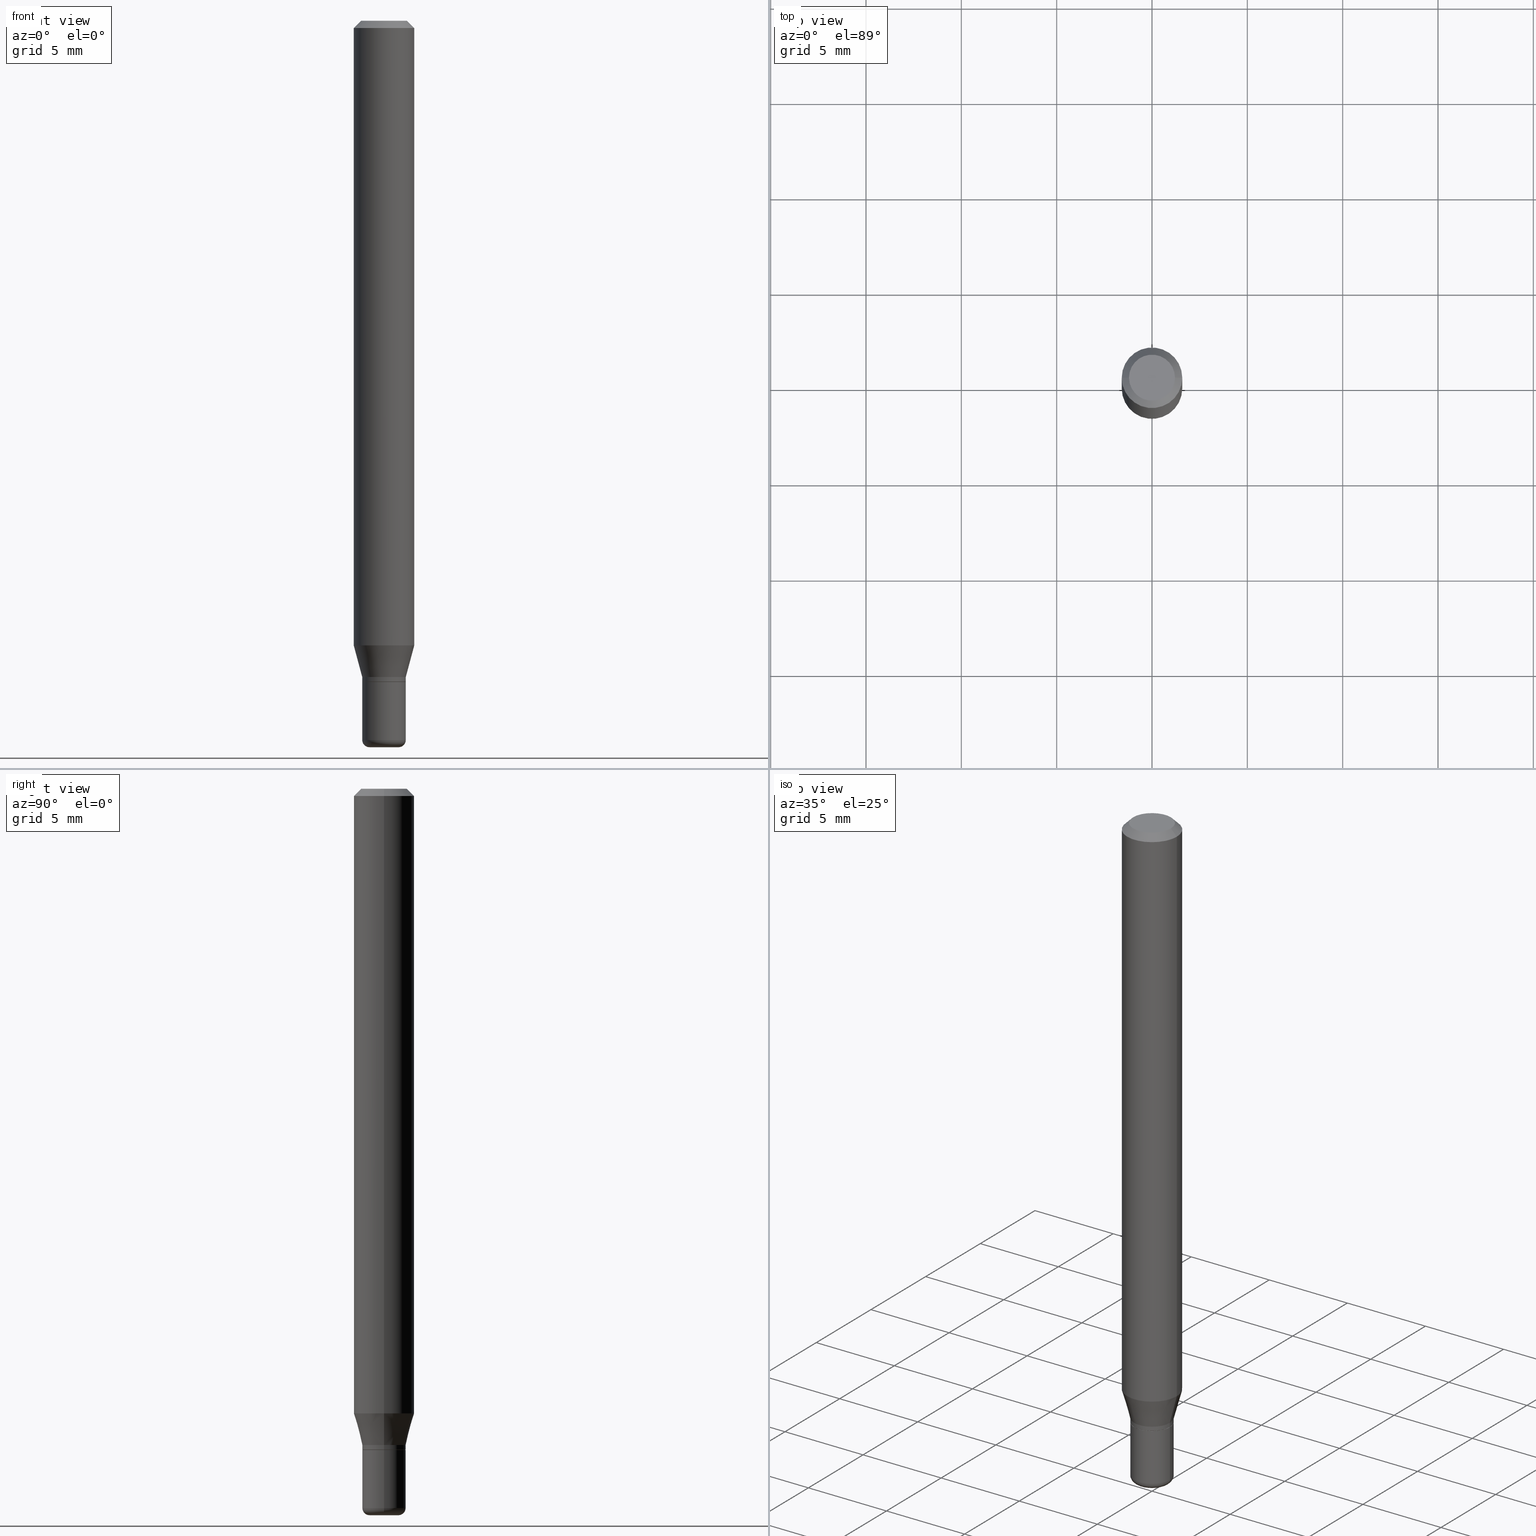
[diagram: canonical four-view strip — front | top / right | iso, engineering-drawing reading convention]
A machine part, canonical four-view strip (front | top / right | iso — engineering-drawing reading convention). The complete STEP part file that produces these views, byte-faithful:
ISO-10303-21;
HEADER;
FILE_DESCRIPTION (( 'STEP AP203' ),
    '1' );
FILE_NAME ('09204.STEP',
    '2024-02-29T23:22:19',
    ( '' ),
    ( '' ),
    'SwSTEP 2.0',
    'SolidWorks 2023',
    '' );
FILE_SCHEMA (( 'CONFIG_CONTROL_DESIGN' ));
ENDSEC;

DATA;
#1 = DIRECTION ( 'NONE',  ( 1.000000000000000000, -6.982962677686270655E-15, 0.000000000000000000 ) ) ;
#2 = CIRCLE ( 'NONE', #397, 0.06250000000000000000 ) ;
#3 = AXIS2_PLACEMENT_3D ( 'NONE', #500, #295, #470 ) ;
#4 = CYLINDRICAL_SURFACE ( 'NONE', #346, 0.04499999999999999833 ) ;
#5 =( NAMED_UNIT ( * ) SI_UNIT ( $, .STERADIAN. ) SOLID_ANGLE_UNIT ( ) );
#6 = CARTESIAN_POINT ( 'NONE',  ( 3.313610232380860851E-29, -4.730957214132463209E-15, -1.355000000000000204 ) ) ;
#7 = ORIENTED_EDGE ( 'NONE', *, *, #257, .T. ) ;
#8 = EDGE_CURVE ( 'NONE', #54, #101, #311, .T. ) ;
#9 = ORIENTED_EDGE ( 'NONE', *, *, #416, .T. ) ;
#10 = DATE_AND_TIME ( #27, #38 ) ;
#11 = ORIENTED_EDGE ( 'NONE', *, *, #42, .T. ) ;
#12 = ORIENTED_EDGE ( 'NONE', *, *, #188, .F. ) ;
#13 = SHAPE_DEFINITION_REPRESENTATION ( #86, #68 ) ;
#14 = ORIENTED_EDGE ( 'NONE', *, *, #451, .F. ) ;
#15 = EDGE_LOOP ( 'NONE', ( #169, #11, #209, #354 ) ) ;
#16 = FACE_OUTER_BOUND ( 'NONE', #216, .T. ) ;
#17 = AXIS2_PLACEMENT_3D ( 'NONE', #468, #247, #110 ) ;
#18 = AXIS2_PLACEMENT_3D ( 'NONE', #40, #479, #306 ) ;
#19 = CARTESIAN_POINT ( 'NONE',  ( 0.000000000000000000, 0.000000000000000000, 0.000000000000000000 ) ) ;
#20 = COORDINATED_UNIVERSAL_TIME_OFFSET ( 5, 0, .BEHIND. ) ;
#21 = ORIENTED_EDGE ( 'NONE', *, *, #200, .T. ) ;
#22 = MECHANICAL_CONTEXT ( 'NONE', #433, 'mechanical' ) ;
#23 = CARTESIAN_POINT ( 'NONE',  ( 0.000000000000000000, 0.000000000000000000, 0.000000000000000000 ) ) ;
#24 = DESIGN_CONTEXT ( 'detailed design', #403, 'design' ) ;
#25 = EDGE_CURVE ( 'NONE', #145, #322, #96, .T. ) ;
#26 = ORIENTED_EDGE ( 'NONE', *, *, #451, .T. ) ;
#27 = CALENDAR_DATE ( 2024, 29, 2 ) ;
#28 = VERTEX_POINT ( 'NONE', #413 ) ;
#29 = VECTOR ( 'NONE', #478, 39.37007874015748143 ) ;
#30 = DIRECTION ( 'NONE',  ( 1.000000000000000000, -6.982962677686266711E-15, 4.876176775795935793E-29 ) ) ;
#31 = VECTOR ( 'NONE', #328, 39.37007874015748143 ) ;
#32 = DIRECTION ( 'NONE',  ( 0.7071067811865479058, -7.319954787623257623E-15, -0.7071067811865471286 ) ) ;
#33 = EDGE_CURVE ( 'NONE', #491, #244, #81, .T. ) ;
#34 = CARTESIAN_POINT ( 'NONE',  ( 3.142333204959153116E-16, 0.04499999999999523131, -1.365000000000000435 ) ) ;
#35 = CC_DESIGN_PERSON_AND_ORGANIZATION_ASSIGNMENT ( #324, #467, ( #396 ) ) ;
#36 = LINE ( 'NONE', #388, #399 ) ;
#37 = VECTOR ( 'NONE', #498, 39.37007874015748143 ) ;
#38 = LOCAL_TIME ( 18, 22, 19.00000000000000000, #217 ) ;
#39 = CARTESIAN_POINT ( 'NONE',  ( 0.06250000000000000000, -4.939360630858633822E-15, -1.289689110867545008 ) ) ;
#40 = CARTESIAN_POINT ( 'NONE',  ( 3.631521177184928138E-29, -5.184849788182071492E-15, -1.485000000000000098 ) ) ;
#41 = ADVANCED_FACE ( 'NONE', ( #406 ), #252, .F. ) ;
#42 = EDGE_CURVE ( 'NONE', #201, #402, #172, .T. ) ;
#43 = DIRECTION ( 'NONE',  ( 1.000000000000000000, -6.982962677686262766E-15, 0.000000000000000000 ) ) ;
#44 = CARTESIAN_POINT ( 'NONE',  ( 0.02999999999999999889, -5.446710888595306494E-15, -1.500000000000000222 ) ) ;
#45 = PERSON_AND_ORGANIZATION_ROLE ( 'classification_officer' ) ;
#46 = DIRECTION ( 'NONE',  ( -2.445468806185136597E-29, 3.491481338843145583E-15, 1.000000000000000000 ) ) ;
#47 = CONICAL_SURFACE ( 'NONE', #445, 0.04449999999999999095, 0.7853981633975507526 ) ;
#48 = APPROVAL_ROLE ( '' ) ;
#49 = CIRCLE ( 'NONE', #18, 0.04499999999999998446 ) ;
#50 = EDGE_CURVE ( 'NONE', #491, #402, #375, .T. ) ;
#51 = EDGE_CURVE ( 'NONE', #244, #101, #427, .T. ) ;
#52 = ORIENTED_EDGE ( 'NONE', *, *, #299, .F. ) ;
#53 = CALENDAR_DATE ( 2024, 29, 2 ) ;
#54 = VERTEX_POINT ( 'NONE', #39 ) ;
#55 = PERSON_AND_ORGANIZATION_ROLE ( 'creator' ) ;
#56 = AXIS2_PLACEMENT_3D ( 'NONE', #23, #75, #180 ) ;
#57 = ORIENTED_EDGE ( 'NONE', *, *, #50, .F. ) ;
#58 = ORIENTED_EDGE ( 'NONE', *, *, #51, .F. ) ;
#59 = CARTESIAN_POINT ( 'NONE',  ( -6.680649051745406845E-45, 9.538196290434862081E-31, 2.731847993664263218E-16 ) ) ;
#60 = EDGE_CURVE ( 'NONE', #322, #495, #455, .T. ) ;
#61 = ORIENTED_EDGE ( 'NONE', *, *, #50, .T. ) ;
#62 = CIRCLE ( 'NONE', #481, 0.04499999999999998446 ) ;
#63 = TOROIDAL_SURFACE ( 'NONE', #198, 0.02999999999999999542, 0.01499999999999998904 ) ;
#64 = ADVANCED_FACE ( 'NONE', ( #507 ), #148, .T. ) ;
#65 = ORIENTED_EDGE ( 'NONE', *, *, #125, .F. ) ;
#66 = DIRECTION ( 'NONE',  ( -2.445468806185136597E-29, 3.491481338843145583E-15, 1.000000000000000000 ) ) ;
#67 = ORIENTED_EDGE ( 'NONE', *, *, #186, .T. ) ;
#68 = ADVANCED_BREP_SHAPE_REPRESENTATION ( '09204', ( #317, #156, #358 ), #137 ) ;
#69 = FACE_OUTER_BOUND ( 'NONE', #166, .T. ) ;
#70 = ORIENTED_EDGE ( 'NONE', *, *, #140, .T. ) ;
#71 = VECTOR ( 'NONE', #486, 39.37007874015748143 ) ;
#72 = CIRCLE ( 'NONE', #235, 0.04499999999999999833 ) ;
#73 = CARTESIAN_POINT ( 'NONE',  ( -0.04449999999999999095, -4.447031282933537610E-15, -1.364999999999999991 ) ) ;
#74 = CARTESIAN_POINT ( 'NONE',  ( -0.06250000000000000000, 3.840629472727455270E-16, -0.01499999999999970281 ) ) ;
#75 = DIRECTION ( 'NONE',  ( -2.445468806185136597E-29, 3.491481338843145583E-15, 1.000000000000000000 ) ) ;
#76 = EDGE_CURVE ( 'NONE', #283, #312, #151, .T. ) ;
#77 = CARTESIAN_POINT ( 'NONE',  ( 3.153894490303225812E-29, -4.502925463503242152E-15, -1.289689110867545008 ) ) ;
#78 = DIRECTION ( 'NONE',  ( 1.000000000000000000, -6.982962677686268288E-15, 0.000000000000000000 ) ) ;
#79 = ORIENTED_EDGE ( 'NONE', *, *, #33, .F. ) ;
#80 = FACE_OUTER_BOUND ( 'NONE', #464, .T. ) ;
#81 = CIRCLE ( 'NONE', #221, 0.04750000000000000749 ) ;
#82 = EDGE_CURVE ( 'NONE', #176, #495, #261, .T. ) ;
#83 = CARTESIAN_POINT ( 'NONE',  ( 3.631521177184928138E-29, -5.184849788182071492E-15, -1.485000000000000098 ) ) ;
#84 = DIRECTION ( 'NONE',  ( 1.000000000000000000, -6.982962677686266711E-15, 4.876176775795935793E-29 ) ) ;
#85 = CARTESIAN_POINT ( 'NONE',  ( 3.668203209277632395E-31, -5.237222008264614861E-17, -0.01499999999999970281 ) ) ;
#86 = PRODUCT_DEFINITION_SHAPE ( 'NONE', 'NONE',  #118 ) ;
#87 = DIRECTION ( 'NONE',  ( -2.445468806185136597E-29, 3.491481338843145583E-15, 1.000000000000000000 ) ) ;
#88 = DIRECTION ( 'NONE',  ( -2.445468806185136877E-29, 3.491481338843145188E-15, 1.000000000000000000 ) ) ;
#89 = ADVANCED_FACE ( 'NONE', ( #226 ), #258, .T. ) ;
#90 = DIRECTION ( 'NONE',  ( 1.000000000000000000, -6.982962677686265922E-15, 4.876176775795935793E-29 ) ) ;
#91 = PRODUCT_RELATED_PRODUCT_CATEGORY ( 'detail', '', ( #396 ) ) ;
#92 = PERSON_AND_ORGANIZATION ( #294, #398 ) ;
#93 = ORIENTED_EDGE ( 'NONE', *, *, #42, .F. ) ;
#94 = EDGE_CURVE ( 'NONE', #201, #54, #2, .T. ) ;
#95 = ORIENTED_EDGE ( 'NONE', *, *, #76, .T. ) ;
#96 = LINE ( 'NONE', #99, #197 ) ;
#97 = CIRCLE ( 'NONE', #463, 0.02999999999999999889 ) ;
#98 = AXIS2_PLACEMENT_3D ( 'NONE', #232, #154, #393 ) ;
#99 = CARTESIAN_POINT ( 'NONE',  ( -0.04449999999999999095, -4.449680510107648811E-15, -1.364999999999999991 ) ) ;
#100 = ORIENTED_EDGE ( 'NONE', *, *, #367, .F. ) ;
#101 = VERTEX_POINT ( 'NONE', #333 ) ;
#102 = DIRECTION ( 'NONE',  ( 1.000000000000000000, -6.982962677686269866E-15, 0.000000000000000000 ) ) ;
#103 = CYLINDRICAL_SURFACE ( 'NONE', #298, 0.04499999999999999140 ) ;
#104 = CC_DESIGN_PERSON_AND_ORGANIZATION_ASSIGNMENT ( #239, #129, ( #259 ) ) ;
#105 = EDGE_LOOP ( 'NONE', ( #242, #52 ) ) ;
#106 = CIRCLE ( 'NONE', #297, 0.06250000000000000000 ) ;
#107 = CONICAL_SURFACE ( 'NONE', #437, 0.06250000000000000000, 0.7853981633974488341 ) ;
#108 = DIRECTION ( 'NONE',  ( 1.000000000000000000, -6.982962677686268288E-15, 0.000000000000000000 ) ) ;
#109 = PERSON_AND_ORGANIZATION ( #294, #398 ) ;
#110 = DIRECTION ( 'NONE',  ( 1.000000000000000000, -6.982962677686269077E-15, 0.000000000000000000 ) ) ;
#111 = ADVANCED_FACE ( 'NONE', ( #136 ), #316, .T. ) ;
#112 = CC_DESIGN_APPROVAL ( #269, ( #118 ) ) ;
#113 = CARTESIAN_POINT ( 'NONE',  ( 0.000000000000000000, 0.000000000000000000, 0.000000000000000000 ) ) ;
#114 = DIRECTION ( 'NONE',  ( 7.105427357601001859E-15, 1.000000000000000000, -3.491481338843145583E-15 ) ) ;
#115 = ADVANCED_FACE ( 'NONE', ( #16 ), #47, .T. ) ;
#116 = CARTESIAN_POINT ( 'NONE',  ( 3.668203209277632395E-31, -5.237222008264614861E-17, -0.01499999999999970281 ) ) ;
#117 = CARTESIAN_POINT ( 'NONE',  ( 3.338064920442711836E-29, -4.765872027520893280E-15, -1.364999999999999991 ) ) ;
#118 = PRODUCT_DEFINITION ( 'UNKNOWN', '', #259, #24 ) ;
#119 = DIRECTION ( 'NONE',  ( -1.000000000000000000, 6.982962677686265922E-15, -4.876176775795935793E-29 ) ) ;
#120 = AXIS2_PLACEMENT_3D ( 'NONE', #510, #338, #192 ) ;
#121 = LOCAL_TIME ( 18, 22, 19.00000000000000000, #237 ) ;
#122 = CYLINDRICAL_SURFACE ( 'NONE', #276, 0.04499999999999999833 ) ;
#123 = CARTESIAN_POINT ( 'NONE',  ( 0.04499999999999999140, -5.078359607347354252E-15, -1.364500000000000046 ) ) ;
#124 = CARTESIAN_POINT ( 'NONE',  ( 3.313610232380860851E-29, -4.730957214132463209E-15, -1.355000000000000204 ) ) ;
#125 = EDGE_CURVE ( 'NONE', #495, #322, #315, .T. ) ;
#126 = ORIENTED_EDGE ( 'NONE', *, *, #255, .T. ) ;
#127 = VECTOR ( 'NONE', #32, 39.37007874015748143 ) ;
#128 = CONICAL_SURFACE ( 'NONE', #98, 0.04449999999999999095, 0.7853981633975507526 ) ;
#129 = PERSON_AND_ORGANIZATION_ROLE ( 'design_supplier' ) ;
#130 = ORIENTED_EDGE ( 'NONE', *, *, #25, .F. ) ;
#131 = APPROVAL_STATUS ( 'not_yet_approved' ) ;
#132 = EDGE_LOOP ( 'NONE', ( #238, #465, #356, #57 ) ) ;
#133 = EDGE_LOOP ( 'NONE', ( #501, #368, #95, #412 ) ) ;
#134 = ORIENTED_EDGE ( 'NONE', *, *, #260, .T. ) ;
#135 = AXIS2_PLACEMENT_3D ( 'NONE', #139, #459, #102 ) ;
#136 = FACE_OUTER_BOUND ( 'NONE', #138, .T. ) ;
#137 =( GEOMETRIC_REPRESENTATION_CONTEXT ( 3 ) GLOBAL_UNCERTAINTY_ASSIGNED_CONTEXT ( ( #146 ) ) GLOBAL_UNIT_ASSIGNED_CONTEXT ( ( #518, #204, #5 ) ) REPRESENTATION_CONTEXT ( 'NONE', 'WORKASPACE' ) );
#138 = EDGE_LOOP ( 'NONE', ( #67, #178, #308, #14 ) ) ;
#139 = CARTESIAN_POINT ( 'NONE',  ( 3.336842186039619034E-29, -4.764126286851473355E-15, -1.364500000000000046 ) ) ;
#140 = EDGE_CURVE ( 'NONE', #318, #161, #425, .T. ) ;
#141 = VERTEX_POINT ( 'NONE', #426 ) ;
#142 = COORDINATED_UNIVERSAL_TIME_OFFSET ( 5, 0, .BEHIND. ) ;
#143 = CARTESIAN_POINT ( 'NONE',  ( -0.06250000000000000000, -1.833559631942881408E-15, -0.01499999999999970281 ) ) ;
#144 = ORIENTED_EDGE ( 'NONE', *, *, #301, .T. ) ;
#145 = VERTEX_POINT ( 'NONE', #73 ) ;
#146 = UNCERTAINTY_MEASURE_WITH_UNIT (LENGTH_MEASURE( 1.000000000000000082E-05 ), #518, 'distance_accuracy_value', 'NONE');
#147 = ADVANCED_FACE ( 'NONE', ( #342 ), #487, .T. ) ;
#148 = CYLINDRICAL_SURFACE ( 'NONE', #410, 0.06250000000000000000 ) ;
#149 = CARTESIAN_POINT ( 'NONE',  ( 0.04499999999999999833, -3.142333204958819823E-16, 2.194279549108170967E-30 ) ) ;
#150 = DIRECTION ( 'NONE',  ( 1.000000000000000000, -6.982962677686274599E-15, 0.000000000000000000 ) ) ;
#151 = CIRCLE ( 'NONE', #493, 0.01499999999999998557 ) ;
#152 = DIRECTION ( 'NONE',  ( 1.000000000000000000, -6.982962677686266711E-15, 4.876176775795935793E-29 ) ) ;
#153 = DIRECTION ( 'NONE',  ( -1.000000000000000000, 6.982962677686266711E-15, 0.000000000000000000 ) ) ;
#154 = DIRECTION ( 'NONE',  ( -2.445468806185136597E-29, 3.491481338843145583E-15, 1.000000000000000000 ) ) ;
#155 = CARTESIAN_POINT ( 'NONE',  ( 0.04449999999999999095, -5.076613866677931960E-15, -1.364999999999999991 ) ) ;
#156 = MANIFOLD_SOLID_BREP ( 'Body-Move/Copy2[2]', #377 ) ;
#157 = LOCAL_TIME ( 18, 22, 19.00000000000000000, #142 ) ;
#158 = DIRECTION ( 'NONE',  ( -2.445468806185136597E-29, 3.491481338843145583E-15, 1.000000000000000000 ) ) ;
#159 = DIRECTION ( 'NONE',  ( 1.000000000000000000, -6.982962677686266711E-15, 4.876176775795935793E-29 ) ) ;
#160 = DATE_TIME_ROLE ( 'classification_date' ) ;
#161 = VERTEX_POINT ( 'NONE', #517 ) ;
#162 = CIRCLE ( 'NONE', #357, 0.02999999999999999889 ) ;
#163 = LOCAL_TIME ( 18, 22, 19.00000000000000000, #20 ) ;
#164 = PERSON_AND_ORGANIZATION ( #294, #398 ) ;
#165 = ORIENTED_EDGE ( 'NONE', *, *, #82, .T. ) ;
#166 = EDGE_LOOP ( 'NONE', ( #206, #9 ) ) ;
#167 = ORIENTED_EDGE ( 'NONE', *, *, #351, .T. ) ;
#168 = AXIS2_PLACEMENT_3D ( 'NONE', #284, #245, #293 ) ;
#169 = ORIENTED_EDGE ( 'NONE', *, *, #515, .T. ) ;
#170 = VECTOR ( 'NONE', #376, 39.37007874015748143 ) ;
#171 = CARTESIAN_POINT ( 'NONE',  ( 3.338064920442711836E-29, -4.765872027520893280E-15, -1.364999999999999991 ) ) ;
#172 = LINE ( 'NONE', #320, #37 ) ;
#173 = DIRECTION ( 'NONE',  ( -2.445468806185136597E-29, 3.491481338843145583E-15, 1.000000000000000000 ) ) ;
#174 = EDGE_CURVE ( 'NONE', #101, #402, #106, .T. ) ;
#175 = APPROVAL_DATE_TIME ( #362, #277 ) ;
#176 = VERTEX_POINT ( 'NONE', #155 ) ;
#177 = PLANE ( 'NONE',  #291 ) ;
#178 = ORIENTED_EDGE ( 'NONE', *, *, #188, .T. ) ;
#179 = LOCAL_TIME ( 18, 22, 19.00000000000000000, #485 ) ;
#180 = DIRECTION ( 'NONE',  ( 1.000000000000000000, -6.982962677686266711E-15, 4.876176775795935793E-29 ) ) ;
#181 = CC_DESIGN_PERSON_AND_ORGANIZATION_ASSIGNMENT ( #289, #462, ( #118 ) ) ;
#182 = CARTESIAN_POINT ( 'NONE',  ( 0.04499999999999998446, -5.499083108677953967E-15, -1.485000000000000098 ) ) ;
#183 = ORIENTED_EDGE ( 'NONE', *, *, #60, .F. ) ;
#184 = DIRECTION ( 'NONE',  ( 1.000000000000000000, -6.982962677686266711E-15, 4.876176775795935793E-29 ) ) ;
#185 = FACE_OUTER_BOUND ( 'NONE', #457, .T. ) ;
#186 = EDGE_CURVE ( 'NONE', #28, #187, #366, .T. ) ;
#187 = VERTEX_POINT ( 'NONE', #439 ) ;
#188 = EDGE_CURVE ( 'NONE', #187, #201, #353, .T. ) ;
#189 = AXIS2_PLACEMENT_3D ( 'NONE', #6, #202, #384 ) ;
#190 = CIRCLE ( 'NONE', #419, 0.04449999999999999095 ) ;
#191 = DIRECTION ( 'NONE',  ( 1.000000000000000000, -6.982962677686258033E-15, 0.000000000000000000 ) ) ;
#192 = DIRECTION ( 'NONE',  ( 1.000000000000000000, -6.982962677686269866E-15, 0.000000000000000000 ) ) ;
#193 = DIRECTION ( 'NONE',  ( -2.445468806185136597E-29, 3.491481338843145583E-15, 1.000000000000000000 ) ) ;
#194 = DIRECTION ( 'NONE',  ( 1.000000000000000000, -6.982962677686266711E-15, 0.000000000000000000 ) ) ;
#195 = CARTESIAN_POINT ( 'NONE',  ( 3.668203209277704895E-29, -5.237222008264718177E-15, -1.500000000000000222 ) ) ;
#196 = CARTESIAN_POINT ( 'NONE',  ( -6.680649051745406845E-45, 9.538196290434862081E-31, 2.731847993664263218E-16 ) ) ;
#197 = VECTOR ( 'NONE', #243, 39.37007874015748143 ) ;
#198 = AXIS2_PLACEMENT_3D ( 'NONE', #421, #66, #383 ) ;
#199 = DIRECTION ( 'NONE',  ( -2.445468806185136877E-29, 3.491481338843145188E-15, 1.000000000000000000 ) ) ;
#200 = EDGE_CURVE ( 'NONE', #176, #145, #512, .T. ) ;
#201 = VERTEX_POINT ( 'NONE', #271 ) ;
#202 = DIRECTION ( 'NONE',  ( -2.445468806185136597E-29, 3.491481338843145583E-15, 1.000000000000000000 ) ) ;
#203 = PERSON_AND_ORGANIZATION ( #294, #398 ) ;
#204 =( NAMED_UNIT ( * ) PLANE_ANGLE_UNIT ( ) SI_UNIT ( $, .RADIAN. ) );
#205 = APPROVAL_DATE_TIME ( #407, #409 ) ;
#206 = ORIENTED_EDGE ( 'NONE', *, *, #33, .T. ) ;
#207 = AXIS2_PLACEMENT_3D ( 'NONE', #514, #499, #272 ) ;
#208 = CIRCLE ( 'NONE', #327, 0.04750000000000000749 ) ;
#209 = ORIENTED_EDGE ( 'NONE', *, *, #174, .F. ) ;
#210 = ORIENTED_EDGE ( 'NONE', *, *, #503, .T. ) ;
#211 = DIRECTION ( 'NONE',  ( -2.445468806185136597E-29, 3.491481338843145583E-15, 1.000000000000000000 ) ) ;
#212 = ORIENTED_EDGE ( 'NONE', *, *, #473, .F. ) ;
#213 = EDGE_CURVE ( 'NONE', #454, #312, #62, .T. ) ;
#214 = AXIS2_PLACEMENT_3D ( 'NONE', #124, #392, #274 ) ;
#215 = EDGE_LOOP ( 'NONE', ( #12, #126, #26, #326 ) ) ;
#216 = EDGE_LOOP ( 'NONE', ( #130, #210, #165, #183 ) ) ;
#217 = COORDINATED_UNIVERSAL_TIME_OFFSET ( 5, 0, .BEHIND. ) ;
#218 = EDGE_LOOP ( 'NONE', ( #314, #134, #489, #100 ) ) ;
#219 = CC_DESIGN_DATE_AND_TIME_ASSIGNMENT ( #10, #395, ( #118 ) ) ;
#220 = CYLINDRICAL_SURFACE ( 'NONE', #56, 0.06250000000000000000 ) ;
#221 = AXIS2_PLACEMENT_3D ( 'NONE', #59, #211, #436 ) ;
#222 = AXIS2_PLACEMENT_3D ( 'NONE', #77, #339, #43 ) ;
#223 = APPROVAL_ROLE ( '' ) ;
#224 = DIRECTION ( 'NONE',  ( -0.7071067811865479058, 2.468850131082261005E-15, -0.7071067811865471286 ) ) ;
#225 = DIRECTION ( 'NONE',  ( -2.445468806185136597E-29, 3.491481338843145583E-15, 1.000000000000000000 ) ) ;
#226 = FACE_OUTER_BOUND ( 'NONE', #132, .T. ) ;
#227 =( LENGTH_UNIT ( ) NAMED_UNIT ( * ) SI_UNIT ( $, .METRE. ) );
#228 = CARTESIAN_POINT ( 'NONE',  ( 3.631521177184928138E-29, -5.184849788182071492E-15, -1.485000000000000098 ) ) ;
#229 = CARTESIAN_POINT ( 'NONE',  ( 0.000000000000000000, 0.000000000000000000, 0.000000000000000000 ) ) ;
#230 = CARTESIAN_POINT ( 'NONE',  ( 3.338064920442711836E-29, -4.765872027520893280E-15, -1.364999999999999991 ) ) ;
#231 = CARTESIAN_POINT ( 'NONE',  ( 0.04499999999999999140, -3.142333204958819329E-16, 2.194279549108170616E-30 ) ) ;
#232 = CARTESIAN_POINT ( 'NONE',  ( 3.338064920442711836E-29, -4.765872027520893280E-15, -1.364999999999999991 ) ) ;
#233 = DIRECTION ( 'NONE',  ( -2.445468806185136597E-29, 3.491481338843145583E-15, 1.000000000000000000 ) ) ;
#234 = VECTOR ( 'NONE', #224, 39.37007874015748143 ) ;
#235 = AXIS2_PLACEMENT_3D ( 'NONE', #267, #46, #440 ) ;
#236 = LINE ( 'NONE', #475, #248 ) ;
#237 = COORDINATED_UNIVERSAL_TIME_OFFSET ( 5, 0, .BEHIND. ) ;
#238 = ORIENTED_EDGE ( 'NONE', *, *, #416, .F. ) ;
#239 = PERSON_AND_ORGANIZATION ( #294, #398 ) ;
#240 = EDGE_CURVE ( 'NONE', #402, #101, #504, .T. ) ;
#241 = EDGE_LOOP ( 'NONE', ( #506, #456 ) ) ;
#242 = ORIENTED_EDGE ( 'NONE', *, *, #301, .F. ) ;
#243 = DIRECTION ( 'NONE',  ( -0.7071067811866199593, 7.493145998870616062E-15, 0.7071067811864750752 ) ) ;
#244 = VERTEX_POINT ( 'NONE', #443 ) ;
#245 = DIRECTION ( 'NONE',  ( -2.445468806185136597E-29, 3.491481338843145583E-15, 1.000000000000000000 ) ) ;
#246 = ORIENTED_EDGE ( 'NONE', *, *, #290, .T. ) ;
#247 = DIRECTION ( 'NONE',  ( -2.445468806185136597E-29, 3.491481338843145583E-15, 1.000000000000000000 ) ) ;
#248 = VECTOR ( 'NONE', #199, 39.37007874015748143 ) ;
#249 = ORIENTED_EDGE ( 'NONE', *, *, #351, .F. ) ;
#250 = AXIS2_PLACEMENT_3D ( 'NONE', #474, #193, #152 ) ;
#251 = CARTESIAN_POINT ( 'NONE',  ( 3.316907271900976589E-16, 0.04750000000000000749, -2.925296391183627249E-17 ) ) ;
#252 = PLANE ( 'NONE',  #207 ) ;
#253 = CALENDAR_DATE ( 2024, 29, 2 ) ;
#254 = ORIENTED_EDGE ( 'NONE', *, *, #240, .T. ) ;
#255 = EDGE_CURVE ( 'NONE', #187, #28, #417, .T. ) ;
#256 = FACE_OUTER_BOUND ( 'NONE', #15, .T. ) ;
#257 = EDGE_CURVE ( 'NONE', #312, #318, #390, .T. ) ;
#258 = CONICAL_SURFACE ( 'NONE', #282, 0.06250000000000000000, 0.7853981633974488341 ) ;
#259 = PRODUCT_DEFINITION_FORMATION_WITH_SPECIFIED_SOURCE ( 'ANY', '', #396, .NOT_KNOWN. ) ;
#260 = EDGE_CURVE ( 'NONE', #322, #187, #236, .T. ) ;
#261 = LINE ( 'NONE', #476, #325 ) ;
#262 = DIRECTION ( 'NONE',  ( 2.438088387897960049E-29, -3.491481338843145188E-15, -1.000000000000000000 ) ) ;
#263 = DIRECTION ( 'NONE',  ( -1.000000000000000000, 7.105427357600997914E-15, 0.000000000000000000 ) ) ;
#264 = DIRECTION ( 'NONE',  ( -2.445468806185136597E-29, 3.491481338843145583E-15, 1.000000000000000000 ) ) ;
#265 = CIRCLE ( 'NONE', #309, 0.01499999999999998557 ) ;
#266 = CC_DESIGN_SECURITY_CLASSIFICATION ( #505, ( #259 ) ) ;
#267 = CARTESIAN_POINT ( 'NONE',  ( 3.338064920442711836E-29, -4.765872027520893280E-15, -1.364999999999999991 ) ) ;
#268 = CARTESIAN_POINT ( 'NONE',  ( -0.04500000000000000527, -4.411212983040417053E-15, -1.355000000000000204 ) ) ;
#269 = APPROVAL ( #423, 'UNSPECIFIED' ) ;
#270 = CARTESIAN_POINT ( 'NONE',  ( -0.04499999999999998446, -4.655616676759437807E-15, -1.485000000000000098 ) ) ;
#271 = CARTESIAN_POINT ( 'NONE',  ( -0.06250000000000000000, -4.058836253653178747E-15, -1.289689110867545008 ) ) ;
#272 = DIRECTION ( 'NONE',  ( 1.000000000000000000, -6.982962677686265922E-15, 4.876176775795935793E-29 ) ) ;
#273 = FACE_OUTER_BOUND ( 'NONE', #241, .T. ) ;
#274 = DIRECTION ( 'NONE',  ( 1.000000000000000000, -6.982962677686267499E-15, 0.000000000000000000 ) ) ;
#275 = AXIS2_PLACEMENT_3D ( 'NONE', #117, #264, #435 ) ;
#276 = AXIS2_PLACEMENT_3D ( 'NONE', #113, #343, #84 ) ;
#277 = APPROVAL ( #448, 'UNSPECIFIED' ) ;
#278 = PERSON_AND_ORGANIZATION ( #294, #398 ) ;
#279 = ORIENTED_EDGE ( 'NONE', *, *, #8, .T. ) ;
#280 = EDGE_LOOP ( 'NONE', ( #249, #420, #7, #371 ) ) ;
#281 = ORIENTED_EDGE ( 'NONE', *, *, #94, .T. ) ;
#282 = AXIS2_PLACEMENT_3D ( 'NONE', #365, #296, #329 ) ;
#283 = VERTEX_POINT ( 'NONE', #44 ) ;
#284 = CARTESIAN_POINT ( 'NONE',  ( 3.313610232380860851E-29, -4.730957214132463209E-15, -1.355000000000000204 ) ) ;
#285 = APPROVAL_ROLE ( '' ) ;
#286 = ORIENTED_EDGE ( 'NONE', *, *, #25, .T. ) ;
#287 = DIRECTION ( 'NONE',  ( -1.000000000000000000, 6.982962677686265922E-15, -4.876176775795935793E-29 ) ) ;
#288 = ORIENTED_EDGE ( 'NONE', *, *, #140, .F. ) ;
#289 = PERSON_AND_ORGANIZATION ( #294, #398 ) ;
#290 = EDGE_CURVE ( 'NONE', #141, #454, #265, .T. ) ;
#291 = AXIS2_PLACEMENT_3D ( 'NONE', #251, #323, #287 ) ;
#292 = EDGE_LOOP ( 'NONE', ( #70, #408 ) ) ;
#293 = DIRECTION ( 'NONE',  ( 1.000000000000000000, -6.982962677686267499E-15, 0.000000000000000000 ) ) ;
#294 = PERSON ( 'UNSPECIFIED', 'UNSPECIFIED', 'UNSPECIFIED', ('UNSPECIFIED'), ('UNSPECIFIED'), ('UNSPECIFIED') ) ;
#295 = DIRECTION ( 'NONE',  ( -2.445468806185136597E-29, 3.491481338843145583E-15, 1.000000000000000000 ) ) ;
#296 = DIRECTION ( 'NONE',  ( 2.445468806185136597E-29, -3.491481338843145583E-15, -1.000000000000000000 ) ) ;
#297 = AXIS2_PLACEMENT_3D ( 'NONE', #430, #401, #194 ) ;
#298 = AXIS2_PLACEMENT_3D ( 'NONE', #19, #173, #30 ) ;
#299 = EDGE_CURVE ( 'NONE', #141, #283, #162, .T. ) ;
#300 = DIRECTION ( 'NONE',  ( 1.000000000000000000, -6.982962677686266711E-15, 4.852736867747365086E-29 ) ) ;
#301 = EDGE_CURVE ( 'NONE', #283, #141, #97, .T. ) ;
#302 = DIRECTION ( 'NONE',  ( -2.445468806185136597E-29, 3.491481338843145583E-15, 1.000000000000000000 ) ) ;
#303 = CLOSED_SHELL ( 'NONE', ( #147, #509, #405, #361, #387, #41 ) ) ;
#304 = CONICAL_SURFACE ( 'NONE', #3, 0.04500000000000000527, 0.2617993877991497964 ) ;
#305 = PLANE ( 'NONE',  #513 ) ;
#306 = DIRECTION ( 'NONE',  ( 1.000000000000000000, -6.982962677686270655E-15, 0.000000000000000000 ) ) ;
#307 = EDGE_LOOP ( 'NONE', ( #350, #447, #422, #449 ) ) ;
#308 = ORIENTED_EDGE ( 'NONE', *, *, #515, .F. ) ;
#309 = AXIS2_PLACEMENT_3D ( 'NONE', #348, #114, #263 ) ;
#310 = CC_DESIGN_APPROVAL ( #409, ( #259 ) ) ;
#311 = LINE ( 'NONE', #452, #71 ) ;
#312 = VERTEX_POINT ( 'NONE', #182 ) ;
#313 = ADVANCED_FACE ( 'NONE', ( #256 ), #220, .T. ) ;
#314 = ORIENTED_EDGE ( 'NONE', *, *, #125, .T. ) ;
#315 = CIRCLE ( 'NONE', #135, 0.04499999999999999140 ) ;
#316 = CONICAL_SURFACE ( 'NONE', #168, 0.04500000000000000527, 0.2617993877991497964 ) ;
#317 = MANIFOLD_SOLID_BREP ( 'Body-Move/Copy2[1]', #303 ) ;
#318 = VERTEX_POINT ( 'NONE', #370 ) ;
#319 = DIRECTION ( 'NONE',  ( -2.445468806185136597E-29, 3.491481338843145583E-15, 1.000000000000000000 ) ) ;
#320 = CARTESIAN_POINT ( 'NONE',  ( -0.06250000000000000000, 4.440892098500626162E-16, -3.074334431409316114E-30 ) ) ;
#321 = FACE_OUTER_BOUND ( 'NONE', #215, .T. ) ;
#322 = VERTEX_POINT ( 'NONE', #424 ) ;
#323 = DIRECTION ( 'NONE',  ( 2.438088387897960049E-29, -3.491481338843145188E-15, -1.000000000000000000 ) ) ;
#324 = PERSON_AND_ORGANIZATION ( #294, #398 ) ;
#325 = VECTOR ( 'NONE', #429, 39.37007874015748143 ) ;
#326 = ORIENTED_EDGE ( 'NONE', *, *, #94, .F. ) ;
#327 = AXIS2_PLACEMENT_3D ( 'NONE', #196, #302, #300 ) ;
#328 = DIRECTION ( 'NONE',  ( -2.445468806185136877E-29, 3.491481338843145188E-15, 1.000000000000000000 ) ) ;
#329 = DIRECTION ( 'NONE',  ( -1.000000000000000000, 6.982962677686266711E-15, 0.000000000000000000 ) ) ;
#330 = DATE_AND_TIME ( #378, #157 ) ;
#331 = CARTESIAN_POINT ( 'NONE',  ( 0.06250000000000000000, -4.811533449433669144E-16, -0.01499999999999970281 ) ) ;
#332 = LINE ( 'NONE', #372, #170 ) ;
#333 = CARTESIAN_POINT ( 'NONE',  ( 0.06250000000000000000, -4.888073874380378612E-16, -0.01499999999999970281 ) ) ;
#334 = DIRECTION ( 'NONE',  ( -6.982962677686266711E-15, -1.000000000000000000, 3.491481338843145583E-15 ) ) ;
#335 = CYLINDRICAL_SURFACE ( 'NONE', #250, 0.04499999999999999140 ) ;
#336 = AXIS2_PLACEMENT_3D ( 'NONE', #85, #233, #441 ) ;
#337 = AXIS2_PLACEMENT_3D ( 'NONE', #34, #262, #119 ) ;
#338 = DIRECTION ( 'NONE',  ( -2.445468806185136597E-29, 3.491481338843145583E-15, 1.000000000000000000 ) ) ;
#339 = DIRECTION ( 'NONE',  ( -2.445468806185136597E-29, 3.491481338843145583E-15, 1.000000000000000000 ) ) ;
#340 = ADVANCED_FACE ( 'NONE', ( #69 ), #177, .F. ) ;
#341 = LENGTH_MEASURE_WITH_UNIT ( LENGTH_MEASURE( 0.02539999999999999897 ), #227 );
#342 = FACE_OUTER_BOUND ( 'NONE', #490, .T. ) ;
#343 = DIRECTION ( 'NONE',  ( -2.445468806185136597E-29, 3.491481338843145583E-15, 1.000000000000000000 ) ) ;
#344 = DIRECTION ( 'NONE',  ( -2.445468806185136597E-29, 3.491481338843145583E-15, 1.000000000000000000 ) ) ;
#345 = CALENDAR_DATE ( 2024, 29, 2 ) ;
#346 = AXIS2_PLACEMENT_3D ( 'NONE', #229, #87, #159 ) ;
#347 = DIRECTION ( 'NONE',  ( 0.2588190451025211281, 1.565188264969623940E-15, 0.9659258262890682012 ) ) ;
#348 = CARTESIAN_POINT ( 'NONE',  ( -0.02999999999999999542, -4.971686967454042036E-15, -1.485000000000000098 ) ) ;
#349 = DATE_AND_TIME ( #345, #121 ) ;
#350 = ORIENTED_EDGE ( 'NONE', *, *, #260, .F. ) ;
#351 = EDGE_CURVE ( 'NONE', #454, #161, #332, .T. ) ;
#352 = CARTESIAN_POINT ( 'NONE',  ( 0.000000000000000000, 0.000000000000000000, 0.000000000000000000 ) ) ;
#353 = LINE ( 'NONE', #268, #29 ) ;
#354 = ORIENTED_EDGE ( 'NONE', *, *, #8, .F. ) ;
#355 = APPLICATION_PROTOCOL_DEFINITION ( 'international standard', 'config_control_design', 1994, #433 ) ;
#356 = ORIENTED_EDGE ( 'NONE', *, *, #174, .T. ) ;
#357 = AXIS2_PLACEMENT_3D ( 'NONE', #195, #344, #78 ) ;
#358 = AXIS2_PLACEMENT_3D ( 'NONE', #352, #389, #400 ) ;
#359 = APPROVAL_DATE_TIME ( #330, #269 ) ;
#360 = EDGE_LOOP ( 'NONE', ( #93, #281, #279, #502 ) ) ;
#361 = ADVANCED_FACE ( 'NONE', ( #508 ), #103, .T. ) ;
#362 = DATE_AND_TIME ( #253, #163 ) ;
#363 = DIMENSIONAL_EXPONENTS ( 1.000000000000000000, 0.000000000000000000, 0.000000000000000000, 0.000000000000000000, 0.000000000000000000, 0.000000000000000000, 0.000000000000000000 ) ;
#364 = ORIENTED_EDGE ( 'NONE', *, *, #257, .F. ) ;
#365 = CARTESIAN_POINT ( 'NONE',  ( 3.668203209277632395E-31, -5.237222008264614861E-17, -0.01499999999999970281 ) ) ;
#366 = CIRCLE ( 'NONE', #214, 0.04500000000000000527 ) ;
#367 = EDGE_CURVE ( 'NONE', #495, #28, #461, .T. ) ;
#368 = ORIENTED_EDGE ( 'NONE', *, *, #299, .T. ) ;
#369 = CC_DESIGN_PERSON_AND_ORGANIZATION_ASSIGNMENT ( #92, #45, ( #505 ) ) ;
#370 = CARTESIAN_POINT ( 'NONE',  ( 0.04499999999999999833, -5.080105348016775756E-15, -1.364999999999999991 ) ) ;
#371 = ORIENTED_EDGE ( 'NONE', *, *, #450, .F. ) ;
#372 = CARTESIAN_POINT ( 'NONE',  ( -0.04499999999999999140, 3.197442310920450225E-16, -2.213520790614707209E-30 ) ) ;
#373 = ORIENTED_EDGE ( 'NONE', *, *, #76, .F. ) ;
#374 = APPLICATION_PROTOCOL_DEFINITION ( 'international standard', 'config_control_design', 1994, #403 ) ;
#375 = LINE ( 'NONE', #74, #234 ) ;
#376 = DIRECTION ( 'NONE',  ( -2.445468806185136877E-29, 3.491481338843145188E-15, 1.000000000000000000 ) ) ;
#377 = CLOSED_SHELL ( 'NONE', ( #483, #458, #89, #313, #111, #379, #64, #414, #340, #497, #115, #466 ) ) ;
#378 = CALENDAR_DATE ( 2024, 29, 2 ) ;
#379 = ADVANCED_FACE ( 'NONE', ( #321 ), #304, .T. ) ;
#380 = DIRECTION ( 'NONE',  ( -2.445468806185136597E-29, 3.491481338843145583E-15, 1.000000000000000000 ) ) ;
#381 = PLANE ( 'NONE',  #337 ) ;
#382 = CARTESIAN_POINT ( 'NONE',  ( 3.153894490303225812E-29, -4.502925463503242152E-15, -1.289689110867545008 ) ) ;
#383 = DIRECTION ( 'NONE',  ( 1.000000000000000000, -6.982962677686271444E-15, 4.883557194083114583E-29 ) ) ;
#384 = DIRECTION ( 'NONE',  ( 1.000000000000000000, -6.982962677686267499E-15, 0.000000000000000000 ) ) ;
#385 = VECTOR ( 'NONE', #88, 39.37007874015748143 ) ;
#386 = APPROVAL_PERSON_ORGANIZATION ( #203, #277, #285 ) ;
#387 = ADVANCED_FACE ( 'NONE', ( #418 ), #63, .T. ) ;
#388 = CARTESIAN_POINT ( 'NONE',  ( 0.04500000000000000527, -5.045190534628344896E-15, -1.355000000000000204 ) ) ;
#389 = DIRECTION ( 'NONE',  ( 0.000000000000000000, 0.000000000000000000, 1.000000000000000000 ) ) ;
#390 = LINE ( 'NONE', #231, #385 ) ;
#391 = CARTESIAN_POINT ( 'NONE',  ( 3.338064920442711836E-29, -4.765872027520893280E-15, -1.364999999999999991 ) ) ;
#392 = DIRECTION ( 'NONE',  ( -2.445468806185136597E-29, 3.491481338843145583E-15, 1.000000000000000000 ) ) ;
#393 = DIRECTION ( 'NONE',  ( 1.000000000000000000, -6.982962677686258033E-15, 0.000000000000000000 ) ) ;
#394 = DIRECTION ( 'NONE',  ( 1.000000000000000000, -6.982962677686271444E-15, 4.883557194083114583E-29 ) ) ;
#395 = DATE_TIME_ROLE ( 'creation_date' ) ;
#396 = PRODUCT ( '09204', '09204', '', ( #22 ) ) ;
#397 = AXIS2_PLACEMENT_3D ( 'NONE', #382, #453, #492 ) ;
#398 = ORGANIZATION ( 'UNSPECIFIED', 'UNSPECIFIED', '' ) ;
#399 = VECTOR ( 'NONE', #347, 39.37007874015748143 ) ;
#400 = DIRECTION ( 'NONE',  ( 1.000000000000000000, 0.000000000000000000, 0.000000000000000000 ) ) ;
#401 = DIRECTION ( 'NONE',  ( -2.445468806185136597E-29, 3.491481338843145583E-15, 1.000000000000000000 ) ) ;
#402 = VERTEX_POINT ( 'NONE', #143 ) ;
#403 = APPLICATION_CONTEXT ( 'configuration controlled 3d designs of mechanical parts and assemblies' ) ;
#404 = ORIENTED_EDGE ( 'NONE', *, *, #473, .T. ) ;
#405 = ADVANCED_FACE ( 'NONE', ( #438 ), #381, .F. ) ;
#406 = FACE_OUTER_BOUND ( 'NONE', #105, .T. ) ;
#407 = DATE_AND_TIME ( #53, #179 ) ;
#408 = ORIENTED_EDGE ( 'NONE', *, *, #450, .T. ) ;
#409 = APPROVAL ( #131, 'UNSPECIFIED' ) ;
#410 = AXIS2_PLACEMENT_3D ( 'NONE', #469, #380, #184 ) ;
#411 = CC_DESIGN_APPROVAL ( #277, ( #505 ) ) ;
#412 = ORIENTED_EDGE ( 'NONE', *, *, #213, .F. ) ;
#413 = CARTESIAN_POINT ( 'NONE',  ( 0.04500000000000000527, -5.045190534628344896E-15, -1.355000000000000204 ) ) ;
#414 = ADVANCED_FACE ( 'NONE', ( #80 ), #107, .T. ) ;
#415 = EDGE_LOOP ( 'NONE', ( #21, #286, #65, #432 ) ) ;
#416 = EDGE_CURVE ( 'NONE', #244, #491, #208, .T. ) ;
#417 = CIRCLE ( 'NONE', #189, 0.04500000000000000527 ) ;
#418 = FACE_OUTER_BOUND ( 'NONE', #133, .T. ) ;
#419 = AXIS2_PLACEMENT_3D ( 'NONE', #391, #511, #191 ) ;
#420 = ORIENTED_EDGE ( 'NONE', *, *, #213, .T. ) ;
#421 = CARTESIAN_POINT ( 'NONE',  ( 3.631521177184928138E-29, -5.184849788182071492E-15, -1.485000000000000098 ) ) ;
#422 = ORIENTED_EDGE ( 'NONE', *, *, #367, .T. ) ;
#423 = APPROVAL_STATUS ( 'not_yet_approved' ) ;
#424 = CARTESIAN_POINT ( 'NONE',  ( -0.04499999999999999140, -4.444382055759426409E-15, -1.364500000000000046 ) ) ;
#425 = CIRCLE ( 'NONE', #17, 0.04499999999999999833 ) ;
#426 = CARTESIAN_POINT ( 'NONE',  ( -0.02999999999999999889, -4.944582372313357422E-15, -1.500000000000000222 ) ) ;
#427 = LINE ( 'NONE', #331, #127 ) ;
#428 = CARTESIAN_POINT ( 'NONE',  ( 3.668203209277704895E-29, -5.237222008264718177E-15, -1.500000000000000222 ) ) ;
#429 = DIRECTION ( 'NONE',  ( 0.7071067811866199593, -2.468850131083015945E-15, 0.7071067811864750752 ) ) ;
#430 = CARTESIAN_POINT ( 'NONE',  ( 3.668203209277632395E-31, -5.237222008264614861E-17, -0.01499999999999970281 ) ) ;
#431 = CC_DESIGN_PERSON_AND_ORGANIZATION_ASSIGNMENT ( #278, #55, ( #259 ) ) ;
#432 = ORIENTED_EDGE ( 'NONE', *, *, #82, .F. ) ;
#433 = APPLICATION_CONTEXT ( 'configuration controlled 3d designs of mechanical parts and assemblies' ) ;
#434 = FACE_OUTER_BOUND ( 'NONE', #415, .T. ) ;
#435 = DIRECTION ( 'NONE',  ( 1.000000000000000000, -6.982962677686258033E-15, 0.000000000000000000 ) ) ;
#436 = DIRECTION ( 'NONE',  ( 1.000000000000000000, -6.982962677686266711E-15, 4.852736867747365086E-29 ) ) ;
#437 = AXIS2_PLACEMENT_3D ( 'NONE', #116, #516, #153 ) ;
#438 = FACE_OUTER_BOUND ( 'NONE', #292, .T. ) ;
#439 = CARTESIAN_POINT ( 'NONE',  ( -0.04500000000000000527, -4.235024618346798294E-15, -1.355000000000000204 ) ) ;
#440 = DIRECTION ( 'NONE',  ( 1.000000000000000000, -6.982962677686269077E-15, 0.000000000000000000 ) ) ;
#441 = DIRECTION ( 'NONE',  ( 1.000000000000000000, -6.982962677686266711E-15, 0.000000000000000000 ) ) ;
#442 = DIRECTION ( 'NONE',  ( -2.438088387897960049E-29, 3.491481338843145188E-15, 1.000000000000000000 ) ) ;
#443 = CARTESIAN_POINT ( 'NONE',  ( 0.04750000000000000749, -4.035134999187568762E-16, 2.731847993664288856E-16 ) ) ;
#444 = SECURITY_CLASSIFICATION_LEVEL ( 'unclassified' ) ;
#445 = AXIS2_PLACEMENT_3D ( 'NONE', #171, #319, #496 ) ;
#446 = CIRCLE ( 'NONE', #222, 0.06250000000000000000 ) ;
#447 = ORIENTED_EDGE ( 'NONE', *, *, #60, .T. ) ;
#448 = APPROVAL_STATUS ( 'not_yet_approved' ) ;
#449 = ORIENTED_EDGE ( 'NONE', *, *, #255, .F. ) ;
#450 = EDGE_CURVE ( 'NONE', #161, #318, #72, .T. ) ;
#451 = EDGE_CURVE ( 'NONE', #28, #54, #36, .T. ) ;
#452 = CARTESIAN_POINT ( 'NONE',  ( 0.06250000000000000000, -4.364351673553916694E-16, 3.047610484872459871E-30 ) ) ;
#453 = DIRECTION ( 'NONE',  ( -2.445468806185136597E-29, 3.491481338843145583E-15, 1.000000000000000000 ) ) ;
#454 = VERTEX_POINT ( 'NONE', #270 ) ;
#455 = CIRCLE ( 'NONE', #120, 0.04499999999999999140 ) ;
#456 = ORIENTED_EDGE ( 'NONE', *, *, #503, .F. ) ;
#457 = EDGE_LOOP ( 'NONE', ( #404, #167, #288, #364 ) ) ;
#458 = ADVANCED_FACE ( 'NONE', ( #434 ), #128, .T. ) ;
#459 = DIRECTION ( 'NONE',  ( -2.445468806185136597E-29, 3.491481338843145583E-15, 1.000000000000000000 ) ) ;
#460 = CC_DESIGN_DATE_AND_TIME_ASSIGNMENT ( #349, #160, ( #505 ) ) ;
#461 = LINE ( 'NONE', #149, #31 ) ;
#462 = PERSON_AND_ORGANIZATION_ROLE ( 'creator' ) ;
#463 = AXIS2_PLACEMENT_3D ( 'NONE', #428, #225, #108 ) ;
#464 = EDGE_LOOP ( 'NONE', ( #58, #79, #61, #254 ) ) ;
#465 = ORIENTED_EDGE ( 'NONE', *, *, #51, .T. ) ;
#466 = ADVANCED_FACE ( 'NONE', ( #477 ), #4, .T. ) ;
#467 = PERSON_AND_ORGANIZATION_ROLE ( 'design_owner' ) ;
#468 = CARTESIAN_POINT ( 'NONE',  ( 3.338064920442711836E-29, -4.765872027520893280E-15, -1.364999999999999991 ) ) ;
#469 = CARTESIAN_POINT ( 'NONE',  ( 0.000000000000000000, 0.000000000000000000, 0.000000000000000000 ) ) ;
#470 = DIRECTION ( 'NONE',  ( 1.000000000000000000, -6.982962677686267499E-15, 0.000000000000000000 ) ) ;
#471 = AXIS2_PLACEMENT_3D ( 'NONE', #228, #158, #394 ) ;
#472 = CARTESIAN_POINT ( 'NONE',  ( 0.02999999999999999542, -5.394338668512659809E-15, -1.485000000000000098 ) ) ;
#473 = EDGE_CURVE ( 'NONE', #312, #454, #49, .T. ) ;
#474 = CARTESIAN_POINT ( 'NONE',  ( 0.000000000000000000, 0.000000000000000000, 0.000000000000000000 ) ) ;
#475 = CARTESIAN_POINT ( 'NONE',  ( -0.04499999999999999833, 3.197442310920450718E-16, -2.213520790614707560E-30 ) ) ;
#476 = CARTESIAN_POINT ( 'NONE',  ( 0.04449999999999999095, -5.076613866677931960E-15, -1.364999999999999991 ) ) ;
#477 = FACE_OUTER_BOUND ( 'NONE', #307, .T. ) ;
#478 = DIRECTION ( 'NONE',  ( -0.2588190451025211281, 5.211531920934548675E-15, 0.9659258262890682012 ) ) ;
#479 = DIRECTION ( 'NONE',  ( -2.445468806185136597E-29, 3.491481338843145583E-15, 1.000000000000000000 ) ) ;
#480 = DIRECTION ( 'NONE',  ( -2.445468806185136597E-29, 3.491481338843145583E-15, 1.000000000000000000 ) ) ;
#481 = AXIS2_PLACEMENT_3D ( 'NONE', #83, #480, #1 ) ;
#482 = FACE_OUTER_BOUND ( 'NONE', #218, .T. ) ;
#483 = ADVANCED_FACE ( 'NONE', ( #482 ), #122, .T. ) ;
#484 = CARTESIAN_POINT ( 'NONE',  ( -0.04750000000000000749, 3.578768372314221353E-16, 2.731847993664239060E-16 ) ) ;
#485 = COORDINATED_UNIVERSAL_TIME_OFFSET ( 5, 0, .BEHIND. ) ;
#486 = DIRECTION ( 'NONE',  ( -2.445468806185136877E-29, 3.491481338843145188E-15, 1.000000000000000000 ) ) ;
#487 = TOROIDAL_SURFACE ( 'NONE', #471, 0.02999999999999999542, 0.01499999999999998904 ) ;
#488 = APPROVAL_PERSON_ORGANIZATION ( #164, #409, #48 ) ;
#489 = ORIENTED_EDGE ( 'NONE', *, *, #186, .F. ) ;
#490 = EDGE_LOOP ( 'NONE', ( #144, #246, #212, #373 ) ) ;
#491 = VERTEX_POINT ( 'NONE', #484 ) ;
#492 = DIRECTION ( 'NONE',  ( 1.000000000000000000, -6.982962677686262766E-15, 0.000000000000000000 ) ) ;
#493 = AXIS2_PLACEMENT_3D ( 'NONE', #472, #334, #150 ) ;
#494 = APPROVAL_PERSON_ORGANIZATION ( #109, #269, #223 ) ;
#495 = VERTEX_POINT ( 'NONE', #123 ) ;
#496 = DIRECTION ( 'NONE',  ( 1.000000000000000000, -6.982962677686258033E-15, 0.000000000000000000 ) ) ;
#497 = ADVANCED_FACE ( 'NONE', ( #273 ), #305, .F. ) ;
#498 = DIRECTION ( 'NONE',  ( -2.445468806185136877E-29, 3.491481338843145188E-15, 1.000000000000000000 ) ) ;
#499 = DIRECTION ( 'NONE',  ( -2.438088387897960049E-29, 3.491481338843145188E-15, 1.000000000000000000 ) ) ;
#500 = CARTESIAN_POINT ( 'NONE',  ( 3.313610232380860851E-29, -4.730957214132463209E-15, -1.355000000000000204 ) ) ;
#501 = ORIENTED_EDGE ( 'NONE', *, *, #290, .F. ) ;
#502 = ORIENTED_EDGE ( 'NONE', *, *, #240, .F. ) ;
#503 = EDGE_CURVE ( 'NONE', #145, #176, #190, .T. ) ;
#504 = CIRCLE ( 'NONE', #336, 0.06250000000000000000 ) ;
#505 = SECURITY_CLASSIFICATION ( '', '', #444 ) ;
#506 = ORIENTED_EDGE ( 'NONE', *, *, #200, .F. ) ;
#507 = FACE_OUTER_BOUND ( 'NONE', #360, .T. ) ;
#508 = FACE_OUTER_BOUND ( 'NONE', #280, .T. ) ;
#509 = ADVANCED_FACE ( 'NONE', ( #185 ), #335, .T. ) ;
#510 = CARTESIAN_POINT ( 'NONE',  ( 3.336842186039619034E-29, -4.764126286851473355E-15, -1.364500000000000046 ) ) ;
#511 = DIRECTION ( 'NONE',  ( -2.445468806185136597E-29, 3.491481338843145583E-15, 1.000000000000000000 ) ) ;
#512 = CIRCLE ( 'NONE', #275, 0.04449999999999999095 ) ;
#513 = AXIS2_PLACEMENT_3D ( 'NONE', #230, #442, #90 ) ;
#514 = CARTESIAN_POINT ( 'NONE',  ( 3.582686580359766038E-29, -5.359686688179453325E-15, -1.500000000000000222 ) ) ;
#515 = EDGE_CURVE ( 'NONE', #54, #201, #446, .T. ) ;
#516 = DIRECTION ( 'NONE',  ( 2.445468806185136597E-29, -3.491481338843145583E-15, -1.000000000000000000 ) ) ;
#517 = CARTESIAN_POINT ( 'NONE',  ( -0.04499999999999999833, -4.655616676759437807E-15, -1.364999999999999991 ) ) ;
#518 =( CONVERSION_BASED_UNIT ( 'INCH', #341 ) LENGTH_UNIT ( ) NAMED_UNIT ( #363 ) );
ENDSEC;
END-ISO-10303-21;
